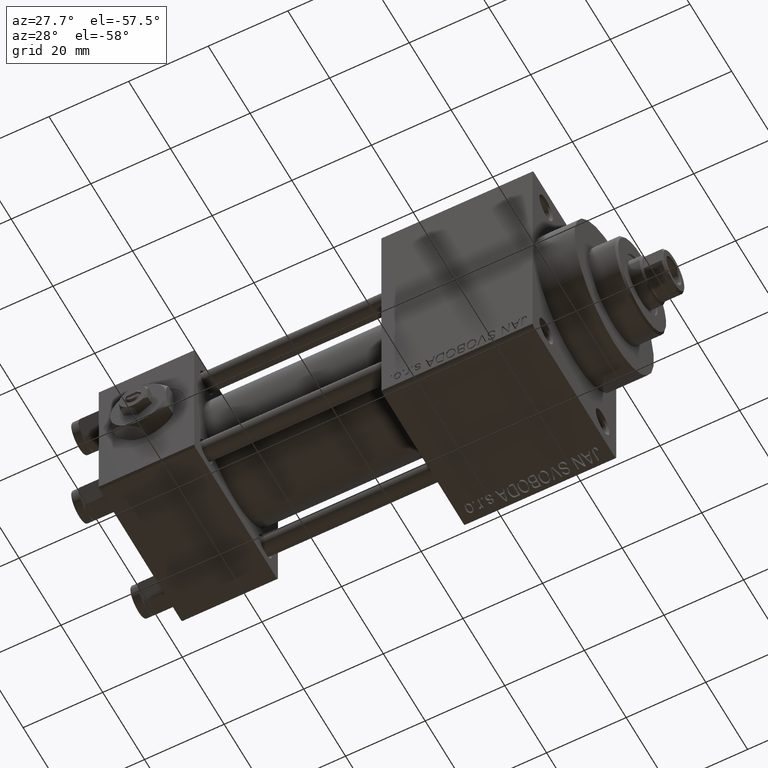
[diagram: clean part render]
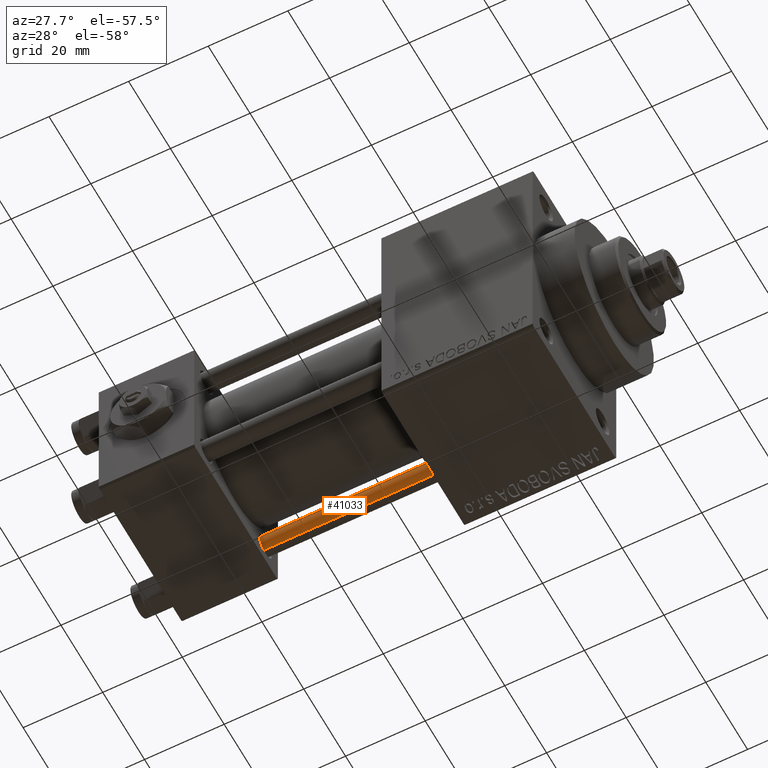
[diagram: same view with one face highlighted and labeled with its STEP entity id]
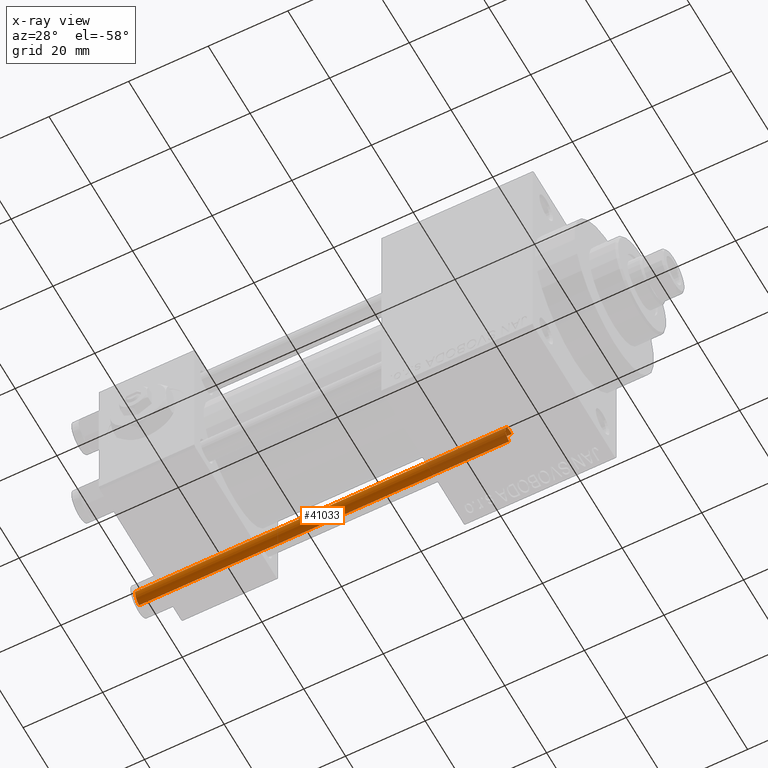
[diagram: x-ray of the same camera — body ghosted, the highlighted face saturated]
A machine part, auxiliary view. The second image highlights one B-rep face of the part: STEP entity #41033.
The next image is the same camera in x-ray: the body ghosted, the highlighted face saturated — about 21% of this face is hidden behind the body in this view.
In plain terms, the highlighted cylindrical surface (edge-blend (fillet) strip) has radius 2.5 mm, axis along (1, -0, 0).
Its self-contained STEP definition (entity closure, byte-faithful):
#947 = EDGE_CURVE ( 'NONE', #46684, #26453, #40950, .T. ) ;
#1333 = CARTESIAN_POINT ( 'NONE',  ( 2.500000000000000000, 3.061616997868383141E-16, 93.50000000000001421 ) ) ;
#3341 = CIRCLE ( 'NONE', #43518, 2.500000000000000000 ) ;
#6932 = EDGE_CURVE ( 'NONE', #35697, #26453, #19894, .T. ) ;
#8108 = ORIENTED_EDGE ( 'NONE', *, *, #42156, .T. ) ;
#10225 = DIRECTION ( 'NONE',  ( 0.000000000000000000, 0.000000000000000000, -1.000000000000000000 ) ) ;
#11759 = CARTESIAN_POINT ( 'NONE',  ( -2.500000000000000000, 0.000000000000000000, 94.00000000000000000 ) ) ;
#12248 = DIRECTION ( 'NONE',  ( -0.000000000000000000, -0.000000000000000000, -1.000000000000000000 ) ) ;
#12409 = DIRECTION ( 'NONE',  ( -0.000000000000000000, -0.000000000000000000, -1.000000000000000000 ) ) ;
#12643 = FACE_OUTER_BOUND ( 'NONE', #30504, .T. ) ;
#12721 = AXIS2_PLACEMENT_3D ( 'NONE', #24225, #12409, #20535 ) ;
#14265 = ORIENTED_EDGE ( 'NONE', *, *, #18836, .T. ) ;
#18441 = DIRECTION ( 'NONE',  ( -0.000000000000000000, -0.000000000000000000, -1.000000000000000000 ) ) ;
#18690 = CARTESIAN_POINT ( 'NONE',  ( 0.000000000000000000, 0.000000000000000000, 0.5000000000000004441 ) ) ;
#18836 = EDGE_CURVE ( 'NONE', #44239, #46684, #26319, .T. ) ;
#19085 = CARTESIAN_POINT ( 'NONE',  ( 2.500000000000000000, 3.061616997868383141E-16, 0.5000000000000004441 ) ) ;
#19186 = DIRECTION ( 'NONE',  ( 1.000000000000000000, 0.000000000000000000, 0.000000000000000000 ) ) ;
#19894 = LINE ( 'NONE', #42593, #24445 ) ;
#20535 = DIRECTION ( 'NONE',  ( -1.000000000000000000, 0.000000000000000000, 0.000000000000000000 ) ) ;
#21639 = ORIENTED_EDGE ( 'NONE', *, *, #6932, .F. ) ;
#24225 = CARTESIAN_POINT ( 'NONE',  ( 0.000000000000000000, 0.000000000000000000, 94.00000000000000000 ) ) ;
#24445 = VECTOR ( 'NONE', #12248, 1000.000000000000000 ) ;
#26319 = LINE ( 'NONE', #11759, #39517 ) ;
#26344 = CARTESIAN_POINT ( 'NONE',  ( -2.500000000000000000, 0.000000000000000000, 0.5000000000000004441 ) ) ;
#26453 = VERTEX_POINT ( 'NONE', #19085 ) ;
#27439 = CYLINDRICAL_SURFACE ( 'NONE', #12721, 2.500000000000000000 ) ;
#27512 = CARTESIAN_POINT ( 'NONE',  ( -2.500000000000000000, 0.000000000000000000, 93.50000000000001421 ) ) ;
#30504 = EDGE_LOOP ( 'NONE', ( #21639, #8108, #14265, #32933 ) ) ;
#32933 = ORIENTED_EDGE ( 'NONE', *, *, #947, .T. ) ;
#33051 = AXIS2_PLACEMENT_3D ( 'NONE', #18690, #41149, #19186 ) ;
#35697 = VERTEX_POINT ( 'NONE', #1333 ) ;
#39517 = VECTOR ( 'NONE', #18441, 1000.000000000000000 ) ;
#39846 = CARTESIAN_POINT ( 'NONE',  ( 0.000000000000000000, 0.000000000000000000, 93.50000000000001421 ) ) ;
#40950 = CIRCLE ( 'NONE', #33051, 2.500000000000000000 ) ;
#41033 = ADVANCED_FACE ( 'NONE', ( #12643 ), #27439, .T. ) ;
#41149 = DIRECTION ( 'NONE',  ( -0.000000000000000000, -0.000000000000000000, 1.000000000000000000 ) ) ;
#42156 = EDGE_CURVE ( 'NONE', #35697, #44239, #3341, .T. ) ;
#42593 = CARTESIAN_POINT ( 'NONE',  ( 2.500000000000000000, 3.061616997868383141E-16, 94.00000000000000000 ) ) ;
#43518 = AXIS2_PLACEMENT_3D ( 'NONE', #39846, #10225, #46758 ) ;
#44239 = VERTEX_POINT ( 'NONE', #27512 ) ;
#46684 = VERTEX_POINT ( 'NONE', #26344 ) ;
#46758 = DIRECTION ( 'NONE',  ( 1.000000000000000000, 0.000000000000000000, 0.000000000000000000 ) ) ;